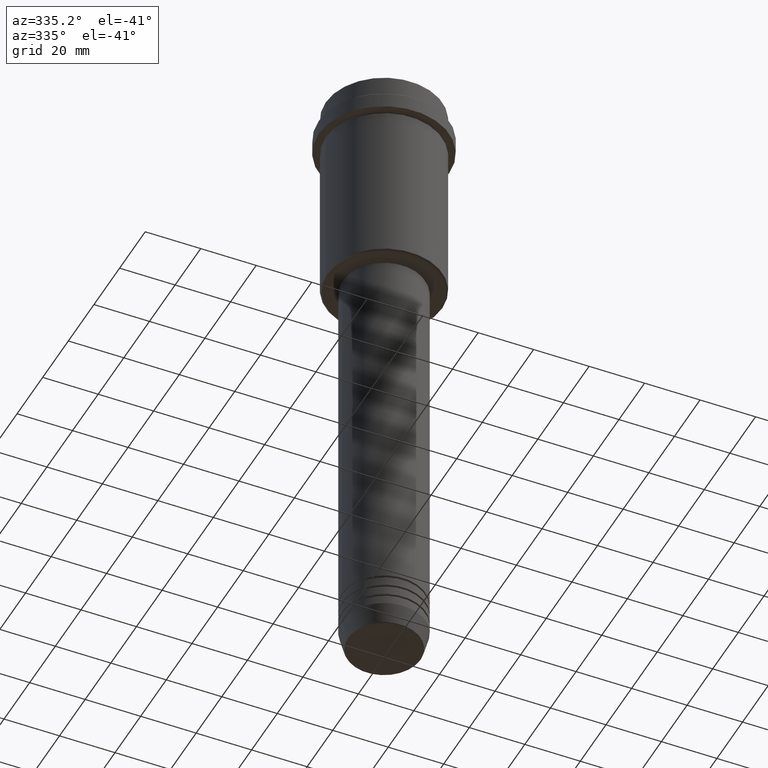
[diagram: clean part render]
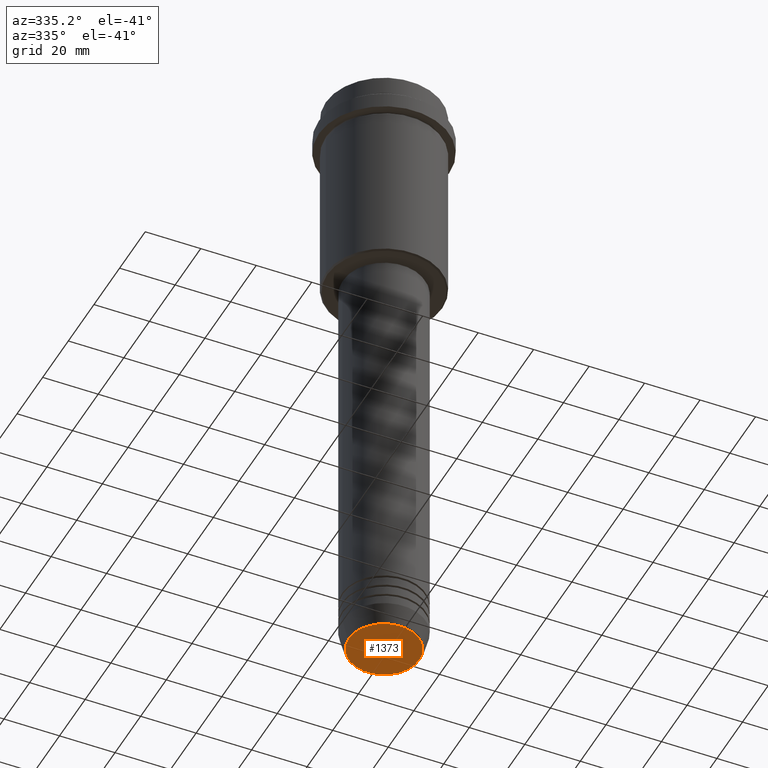
[diagram: same view with one face highlighted and labeled with its STEP entity id]
A machine part, auxiliary view. The second image highlights one B-rep face of the part: STEP entity #1373.
In plain terms, the highlighted planar face has unit normal (0, -0, 1).
Its self-contained STEP definition (entity closure, byte-faithful):
#63 = AXIS2_PLACEMENT_3D ( 'NONE', #966, #543, #420 ) ;
#249 = AXIS2_PLACEMENT_3D ( 'NONE', #1231, #799, #1125 ) ;
#276 = AXIS2_PLACEMENT_3D ( 'NONE', #371, #707, #1239 ) ;
#299 = EDGE_CURVE ( 'NONE', #671, #1406, #996, .T. ) ;
#371 = CARTESIAN_POINT ( 'NONE',  ( 0.000000000000000000, 0.000000000000000000, -230.0000000000000284 ) ) ;
#420 = DIRECTION ( 'NONE',  ( 1.000000000000000000, 0.000000000000000000, 0.000000000000000000 ) ) ;
#543 = DIRECTION ( 'NONE',  ( 0.000000000000000000, 0.000000000000000000, -1.000000000000000000 ) ) ;
#585 = FACE_OUTER_BOUND ( 'NONE', #761, .T. ) ;
#671 = VERTEX_POINT ( 'NONE', #813 ) ;
#679 = ORIENTED_EDGE ( 'NONE', *, *, #1080, .T. ) ;
#680 = CIRCLE ( 'NONE', #249, 12.74069215899266361 ) ;
#690 = CARTESIAN_POINT ( 'NONE',  ( 12.74069215899266361, 0.000000000000000000, -230.0000000000000284 ) ) ;
#707 = DIRECTION ( 'NONE',  ( 0.000000000000000000, -0.000000000000000000, 1.000000000000000000 ) ) ;
#722 = ORIENTED_EDGE ( 'NONE', *, *, #299, .T. ) ;
#761 = EDGE_LOOP ( 'NONE', ( #679, #722 ) ) ;
#799 = DIRECTION ( 'NONE',  ( 0.000000000000000000, 0.000000000000000000, -1.000000000000000000 ) ) ;
#813 = CARTESIAN_POINT ( 'NONE',  ( -12.74069215899266361, 1.589857736427681429E-15, -230.0000000000000284 ) ) ;
#966 = CARTESIAN_POINT ( 'NONE',  ( 0.000000000000000000, 0.000000000000000000, -230.0000000000000284 ) ) ;
#996 = CIRCLE ( 'NONE', #63, 12.74069215899266361 ) ;
#1080 = EDGE_CURVE ( 'NONE', #1406, #671, #680, .T. ) ;
#1125 = DIRECTION ( 'NONE',  ( 1.000000000000000000, 0.000000000000000000, 0.000000000000000000 ) ) ;
#1231 = CARTESIAN_POINT ( 'NONE',  ( 0.000000000000000000, 0.000000000000000000, -230.0000000000000284 ) ) ;
#1239 = DIRECTION ( 'NONE',  ( 1.000000000000000000, 0.000000000000000000, 0.000000000000000000 ) ) ;
#1362 = PLANE ( 'NONE',  #276 ) ;
#1373 = ADVANCED_FACE ( 'NONE', ( #585 ), #1362, .F. ) ;
#1406 = VERTEX_POINT ( 'NONE', #690 ) ;